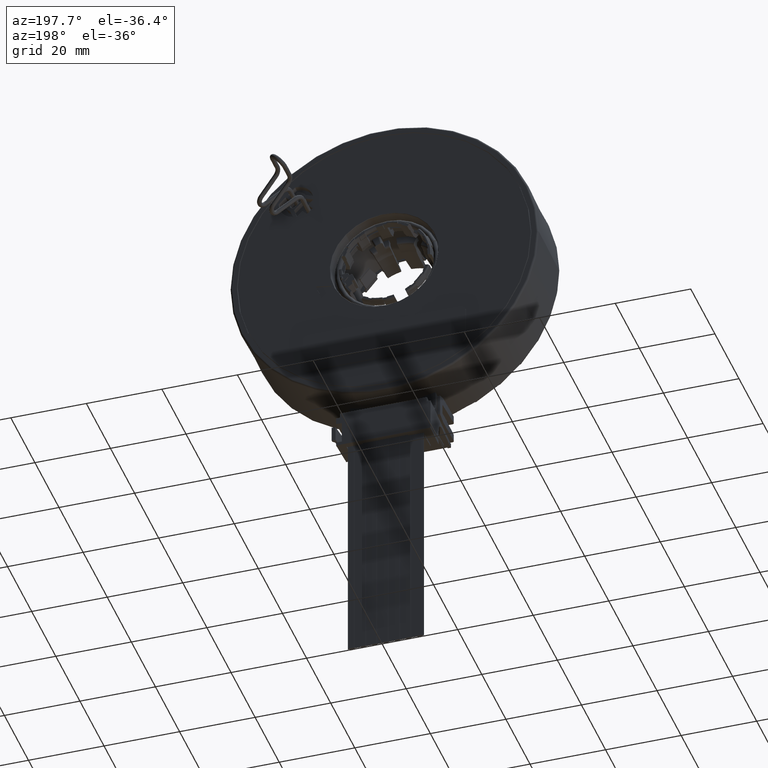
[diagram: clean part render]
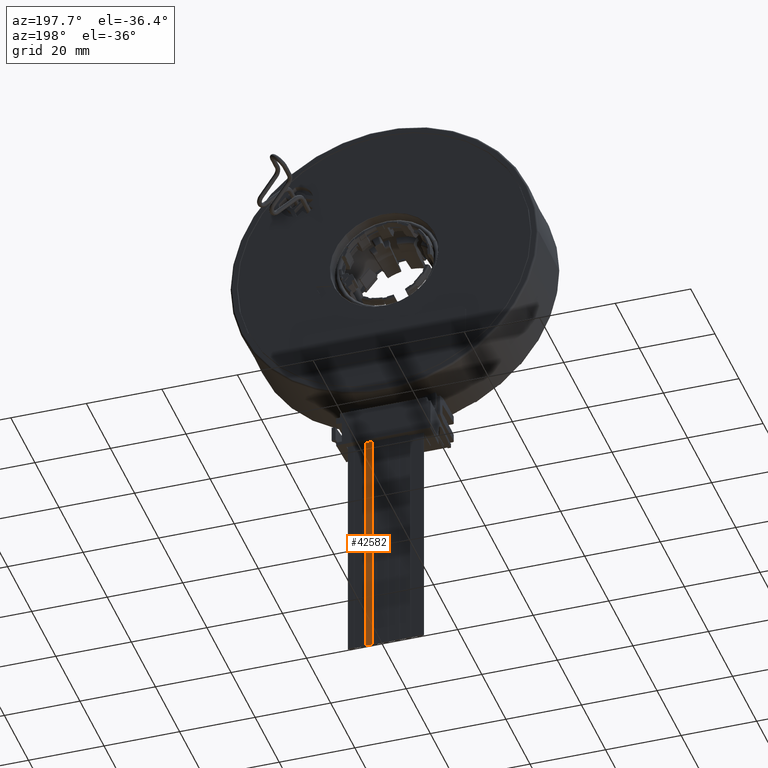
[diagram: same view with one face highlighted and labeled with its STEP entity id]
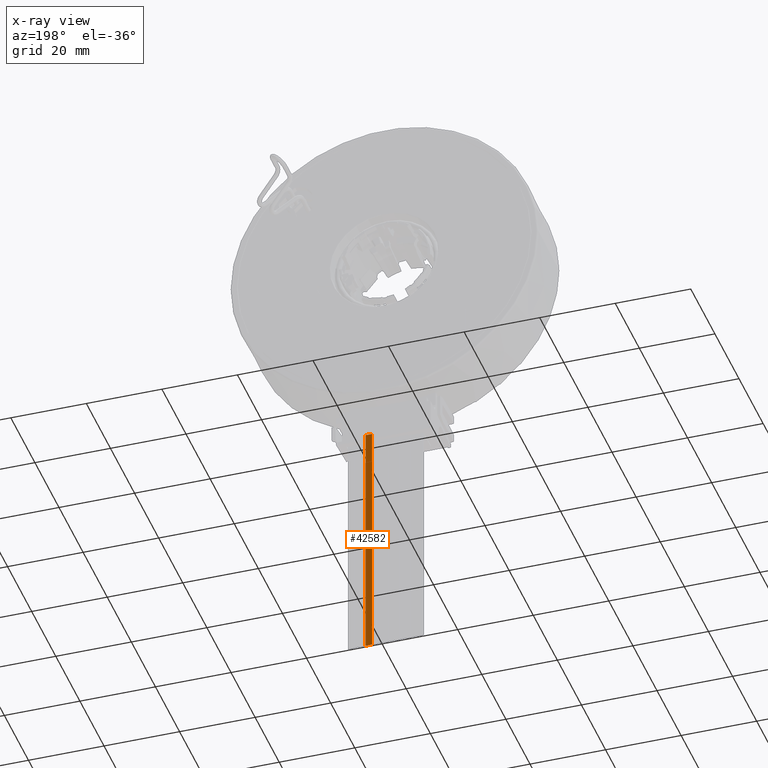
[diagram: x-ray of the same camera — body ghosted, the highlighted face saturated]
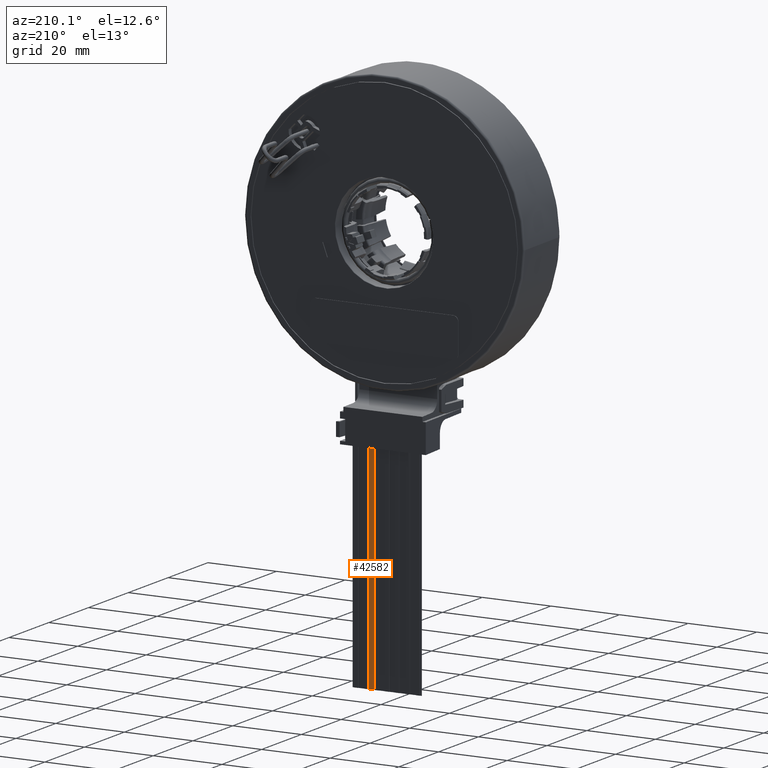
[diagram: same view with one face highlighted and labeled with its STEP entity id]
A machine part, auxiliary view. The second image highlights one B-rep face of the part: STEP entity #42582.
The next image is the same camera in x-ray: the body ghosted, the highlighted face saturated — about 0% of this face is hidden behind the body in this view.
A second angle (auxiliary view) of the same face is appended — the face is thin or edge-on in the first view.
In plain terms, the highlighted planar face has unit normal (0, 1, 0).
Its self-contained STEP definition (entity closure, byte-faithful):
#6543=DIRECTION('',(-1.E0,0.E0,0.E0));
#6544=VECTOR('',#6543,6.811023622047E-2);
#6545=CARTESIAN_POINT('',(2.114566929134E-1,6.657007874016E-1,
-4.676551181102E0));
#6546=LINE('',#6545,#6544);
#11426=DIRECTION('',(0.E0,0.E0,1.E0));
#11427=VECTOR('',#11426,2.598425196850E0);
#11428=CARTESIAN_POINT('',(2.114566929134E-1,6.657007874016E-1,
-4.676551181102E0));
#11429=LINE('',#11428,#11427);
#11430=DIRECTION('',(0.E0,0.E0,1.E0));
#11431=VECTOR('',#11430,2.598425196850E0);
#11432=CARTESIAN_POINT('',(1.433464566929E-1,6.657007874016E-1,
-4.676551181102E0));
#11433=LINE('',#11432,#11431);
#11444=DIRECTION('',(-1.E0,0.E0,0.E0));
#11445=VECTOR('',#11444,6.811023622047E-2);
#11446=CARTESIAN_POINT('',(2.114566929134E-1,6.657007874016E-1,
-2.078125984252E0));
#11447=LINE('',#11446,#11445);
#28212=CARTESIAN_POINT('',(1.433464566929E-1,6.657007874016E-1,
-4.676551181102E0));
#28213=CARTESIAN_POINT('',(1.433464566929E-1,6.657007874016E-1,
-2.078125984252E0));
#28214=VERTEX_POINT('',#28212);
#28215=VERTEX_POINT('',#28213);
#28296=CARTESIAN_POINT('',(2.114566929134E-1,6.657007874016E-1,
-4.676551181102E0));
#28297=CARTESIAN_POINT('',(2.114566929134E-1,6.657007874016E-1,
-2.078125984252E0));
#28298=VERTEX_POINT('',#28296);
#28299=VERTEX_POINT('',#28297);
#42570=CARTESIAN_POINT('',(2.362204724409E-4,6.657007874016E-1,
-3.377338582677E0));
#42571=DIRECTION('',(0.E0,1.E0,0.E0));
#42572=DIRECTION('',(-1.E0,0.E0,0.E0));
#42573=AXIS2_PLACEMENT_3D('',#42570,#42571,#42572);
#42574=PLANE('',#42573);
#42575=ORIENTED_EDGE('',*,*,#35604,.T.);
#42577=ORIENTED_EDGE('',*,*,#42576,.T.);
#42578=ORIENTED_EDGE('',*,*,#35644,.F.);
#42579=ORIENTED_EDGE('',*,*,#36619,.F.);
#42580=EDGE_LOOP('',(#42575,#42577,#42578,#42579));
#42581=FACE_OUTER_BOUND('',#42580,.F.);
#42582=ADVANCED_FACE('',(#42581),#42574,.T.);
#35604=EDGE_CURVE('',#28298,#28299,#11429,.T.);
#35644=EDGE_CURVE('',#28214,#28215,#11433,.T.);
#36619=EDGE_CURVE('',#28298,#28214,#6546,.T.);
#42576=EDGE_CURVE('',#28299,#28215,#11447,.T.);